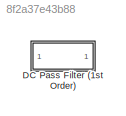
MODEL slx_8f2a37e43b88
KIND model
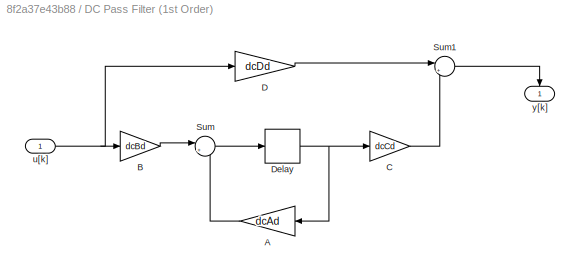
BLOCK [SubSystem] DC Pass Filter (1st Order)
  FunctionWithSeparateData = off
  MaskHideContents = off
  MinAlgLoopOccurrences = off
  Opaque = off
  Ports = [1, 1]
  PropExecContextOutsideSubsystem = off
  RTWSystemCode = Auto
  RequestExecContextInheritance = off
BLOCK [Gain] DC Pass Filter (1st Order)/A
  Gain = dcAd
  OutDataTypeStr = Inherit: Inherit via internal rule
  ParamDataTypeStr = Inherit: Inherit via internal rule
  SaturateOnIntegerOverflow = off
BLOCK [Gain] DC Pass Filter (1st Order)/B
  Gain = dcBd
  OutDataTypeStr = Inherit: Inherit via internal rule
  ParamDataTypeStr = Inherit: Inherit via internal rule
  SaturateOnIntegerOverflow = off
BLOCK [Gain] DC Pass Filter (1st Order)/C
  Gain = dcCd
  OutDataTypeStr = Inherit: Inherit via internal rule
  ParamDataTypeStr = Inherit: Inherit via internal rule
  SaturateOnIntegerOverflow = off
BLOCK [Gain] DC Pass Filter (1st Order)/D
  Gain = dcDd
  OutDataTypeStr = Inherit: Inherit via internal rule
  ParamDataTypeStr = Inherit: Inherit via internal rule
  SaturateOnIntegerOverflow = off
BLOCK [Delay] DC Pass Filter (1st Order)/Delay
  DelayLength = 1
  InitialCondition = 0
  InputPortMap = u0
  Ports = [1, 1]
  SampleTime = Ts
BLOCK [Sum] DC Pass Filter (1st Order)/Sum
  IconShape = round
  InputSameDT = off
  Inputs = |++
  OutDataTypeStr = Inherit: Inherit via internal rule
  Ports = [2, 1]
  SaturateOnIntegerOverflow = off
BLOCK [Sum] DC Pass Filter (1st Order)/Sum1
  IconShape = round
  InputSameDT = off
  Inputs = |++
  OutDataTypeStr = Inherit: Inherit via internal rule
  Ports = [2, 1]
  SaturateOnIntegerOverflow = off
BLOCK [Inport] DC Pass Filter (1st Order)/u[k]
  IconDisplay = Port number
BLOCK [Outport] DC Pass Filter (1st Order)/y[k]
  IconDisplay = Port number
LINE DC Pass Filter (1st Order)/A:1 -> DC Pass Filter (1st Order)/Sum:2
LINE DC Pass Filter (1st Order)/B:1 -> DC Pass Filter (1st Order)/Sum:1
LINE DC Pass Filter (1st Order)/C:1 -> DC Pass Filter (1st Order)/Sum1:2
LINE DC Pass Filter (1st Order)/D:1 -> DC Pass Filter (1st Order)/Sum1:1
NET DC Pass Filter (1st Order)/Delay:1 -> DC Pass Filter (1st Order)/A:1, DC Pass Filter (1st Order)/C:1
LINE DC Pass Filter (1st Order)/Sum1:1 -> DC Pass Filter (1st Order)/y[k]:1
LINE DC Pass Filter (1st Order)/Sum:1 -> DC Pass Filter (1st Order)/Delay:1
NET DC Pass Filter (1st Order)/u[k]:1 -> DC Pass Filter (1st Order)/B:1, DC Pass Filter (1st Order)/D:1
note: NET lines group one-source signal fan-out (src -> all destinations, sorted); 1:1 wires keep LINE
